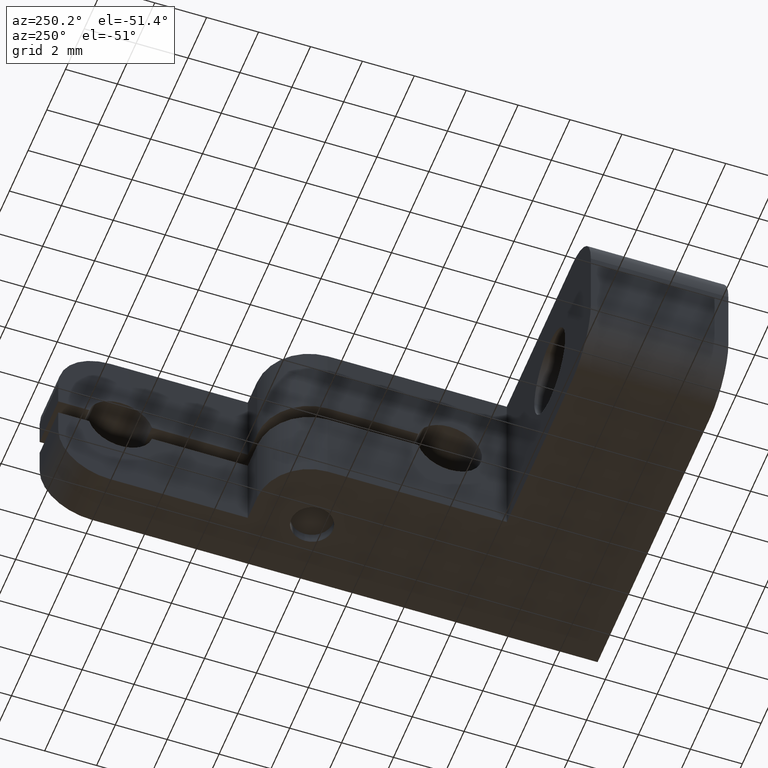
[diagram: clean part render]
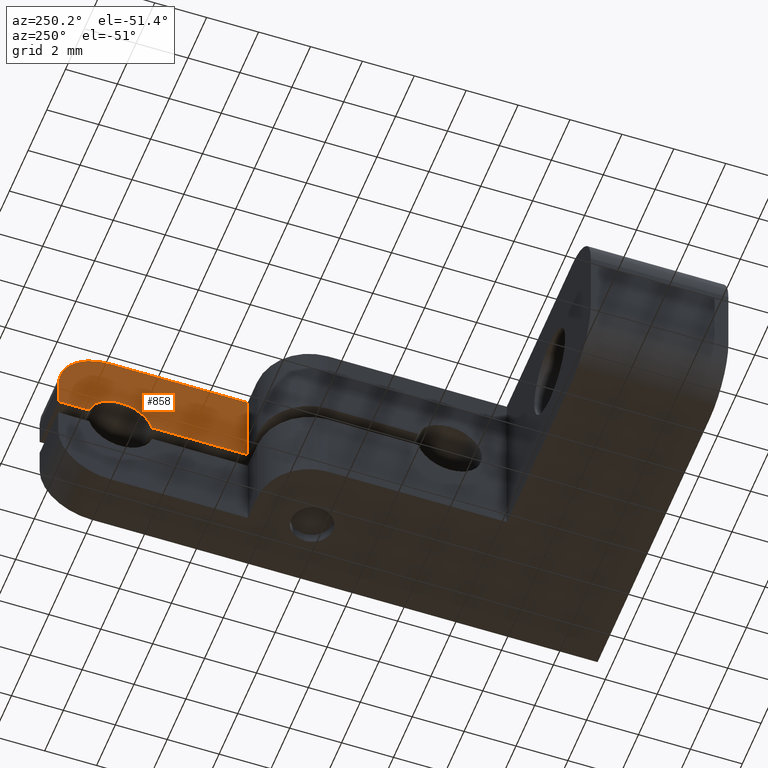
[diagram: same view with one face highlighted and labeled with its STEP entity id]
A machine part, auxiliary view. The second image highlights one B-rep face of the part: STEP entity #858.
In plain terms, the highlighted planar face has unit normal (1, 0, 0).
Its self-contained STEP definition (entity closure, byte-faithful):
#28 = VERTEX_POINT ( 'NONE', #1184 ) ;
#30 = VECTOR ( 'NONE', #580, 1000.000000000000000 ) ;
#40 = VECTOR ( 'NONE', #1028, 1000.000000000000000 ) ;
#47 = ORIENTED_EDGE ( 'NONE', *, *, #744, .F. ) ;
#92 = DIRECTION ( 'NONE',  ( 0.000000000000000000, 1.000000000000000000, -3.552713678800498957E-15 ) ) ;
#161 = DIRECTION ( 'NONE',  ( -0.000000000000000000, -0.000000000000000000, -1.000000000000000000 ) ) ;
#397 = EDGE_CURVE ( 'NONE', #1431, #1256, #1146, .T. ) ;
#413 = AXIS2_PLACEMENT_3D ( 'NONE', #813, #800, #2006 ) ;
#425 = EDGE_CURVE ( 'NONE', #509, #1201, #1972, .T. ) ;
#430 = DIRECTION ( 'NONE',  ( -1.000000000000000000, -1.188166764367676342E-16, 0.000000000000000000 ) ) ;
#479 = VERTEX_POINT ( 'NONE', #1673 ) ;
#509 = VERTEX_POINT ( 'NONE', #1063 ) ;
#548 = VERTEX_POINT ( 'NONE', #1391 ) ;
#580 = DIRECTION ( 'NONE',  ( 1.188166764367676342E-16, -1.000000000000000000, 0.000000000000000000 ) ) ;
#644 = DIRECTION ( 'NONE',  ( -2.168404344971006896E-16, 1.000000000000000000, 0.000000000000000000 ) ) ;
#661 = LINE ( 'NONE', #2155, #40 ) ;
#685 = DIRECTION ( 'NONE',  ( -1.000000000000000000, -1.188166764367676342E-16, 0.000000000000000000 ) ) ;
#702 = DIRECTION ( 'NONE',  ( 0.000000000000000000, 1.000000000000000000, 2.664535259100374514E-15 ) ) ;
#704 = ORIENTED_EDGE ( 'NONE', *, *, #1262, .T. ) ;
#731 = ORIENTED_EDGE ( 'NONE', *, *, #1017, .F. ) ;
#733 = LINE ( 'NONE', #1599, #1007 ) ;
#744 = EDGE_CURVE ( 'NONE', #878, #28, #1533, .T. ) ;
#754 = ORIENTED_EDGE ( 'NONE', *, *, #1110, .F. ) ;
#800 = DIRECTION ( 'NONE',  ( 1.000000000000000000, 1.188166764367676342E-16, -0.000000000000000000 ) ) ;
#802 = DIRECTION ( 'NONE',  ( -0.000000000000000000, -0.000000000000000000, -1.000000000000000000 ) ) ;
#813 = CARTESIAN_POINT ( 'NONE',  ( -2.000000000000000000, 21.50000000000000000, 3.350000000000000089 ) ) ;
#822 = VECTOR ( 'NONE', #161, 1000.000000000000000 ) ;
#826 = CARTESIAN_POINT ( 'NONE',  ( -1.999999999999999112, 14.19999999999999929, 3.350000000000000089 ) ) ;
#858 = ADVANCED_FACE ( 'NONE', ( #2153 ), #1143, .F. ) ;
#866 = CARTESIAN_POINT ( 'NONE',  ( -2.000000000000003553, 21.50000000000000000, 0.3200000000000003952 ) ) ;
#878 = VERTEX_POINT ( 'NONE', #1132 ) ;
#1007 = VECTOR ( 'NONE', #1091, 1000.000000000000000 ) ;
#1017 = EDGE_CURVE ( 'NONE', #28, #479, #1249, .T. ) ;
#1028 = DIRECTION ( 'NONE',  ( -1.188166764367676342E-16, 1.000000000000000000, 1.356136956839420588E-16 ) ) ;
#1063 = CARTESIAN_POINT ( 'NONE',  ( -1.999999999999999112, 14.19999999999999929, 3.350000000000000089 ) ) ;
#1082 = AXIS2_PLACEMENT_3D ( 'NONE', #1941, #430, #92 ) ;
#1091 = DIRECTION ( 'NONE',  ( -1.188166764367676342E-16, 1.000000000000000000, 1.356136956839420588E-16 ) ) ;
#1109 = ORIENTED_EDGE ( 'NONE', *, *, #397, .T. ) ;
#1110 = EDGE_CURVE ( 'NONE', #479, #1256, #733, .T. ) ;
#1132 = CARTESIAN_POINT ( 'NONE',  ( -2.000000000000000000, 17.89165402305465591, 0.3199999999999998956 ) ) ;
#1143 = PLANE ( 'NONE',  #413 ) ;
#1146 = LINE ( 'NONE', #1307, #822 ) ;
#1184 = CARTESIAN_POINT ( 'NONE',  ( -2.000000000000000000, 19.10000000000000142, 1.250000000000000000 ) ) ;
#1201 = VERTEX_POINT ( 'NONE', #2095 ) ;
#1221 = EDGE_CURVE ( 'NONE', #548, #509, #2115, .T. ) ;
#1249 = CIRCLE ( 'NONE', #1531, 1.250000000000001110 ) ;
#1256 = VERTEX_POINT ( 'NONE', #866 ) ;
#1258 = AXIS2_PLACEMENT_3D ( 'NONE', #1815, #685, #644 ) ;
#1262 = EDGE_CURVE ( 'NONE', #548, #1431, #1469, .T. ) ;
#1307 = CARTESIAN_POINT ( 'NONE',  ( -2.000000000000000000, 21.50000000000000000, 3.350000000000000089 ) ) ;
#1391 = CARTESIAN_POINT ( 'NONE',  ( -1.999999999999999556, 19.49999999999999645, 3.350000000000000089 ) ) ;
#1416 = VECTOR ( 'NONE', #802, 1000.000000000000000 ) ;
#1431 = VERTEX_POINT ( 'NONE', #1554 ) ;
#1469 = CIRCLE ( 'NONE', #1258, 2.000000000000001776 ) ;
#1523 = CARTESIAN_POINT ( 'NONE',  ( -2.000000000000000000, 19.10000000000000142, -4.336808689942017736E-16 ) ) ;
#1531 = AXIS2_PLACEMENT_3D ( 'NONE', #1523, #1875, #702 ) ;
#1533 = CIRCLE ( 'NONE', #1082, 1.250000000000001110 ) ;
#1543 = ORIENTED_EDGE ( 'NONE', *, *, #1852, .F. ) ;
#1554 = CARTESIAN_POINT ( 'NONE',  ( -2.000000000000000000, 21.50000000000000000, 1.350000000000000089 ) ) ;
#1579 = CARTESIAN_POINT ( 'NONE',  ( -2.000000000000000000, 21.50000000000000000, 3.350000000000000089 ) ) ;
#1599 = CARTESIAN_POINT ( 'NONE',  ( -2.000000000000000000, 21.50000000000000000, 0.3200000000000003952 ) ) ;
#1651 = EDGE_LOOP ( 'NONE', ( #1717, #704, #1109, #754, #731, #47, #1543, #1741 ) ) ;
#1673 = CARTESIAN_POINT ( 'NONE',  ( -2.000000000000003553, 20.30834597694534693, 0.3200000000000001177 ) ) ;
#1717 = ORIENTED_EDGE ( 'NONE', *, *, #1221, .F. ) ;
#1741 = ORIENTED_EDGE ( 'NONE', *, *, #425, .F. ) ;
#1815 = CARTESIAN_POINT ( 'NONE',  ( -1.999999999999999556, 19.49999999999999645, 1.350000000000000089 ) ) ;
#1852 = EDGE_CURVE ( 'NONE', #1201, #878, #661, .T. ) ;
#1875 = DIRECTION ( 'NONE',  ( -1.000000000000000000, -1.188166764367676342E-16, 0.000000000000000000 ) ) ;
#1941 = CARTESIAN_POINT ( 'NONE',  ( -2.000000000000000000, 19.10000000000000142, -4.336808689942017736E-16 ) ) ;
#1972 = LINE ( 'NONE', #826, #1416 ) ;
#2006 = DIRECTION ( 'NONE',  ( -1.188166764367676342E-16, 1.000000000000000000, 0.000000000000000000 ) ) ;
#2095 = CARTESIAN_POINT ( 'NONE',  ( -1.999999999999998224, 14.19999999999999929, 0.3199999999999994515 ) ) ;
#2115 = LINE ( 'NONE', #1579, #30 ) ;
#2153 = FACE_OUTER_BOUND ( 'NONE', #1651, .T. ) ;
#2155 = CARTESIAN_POINT ( 'NONE',  ( -2.000000000000000000, 21.50000000000000000, 0.3200000000000003952 ) ) ;